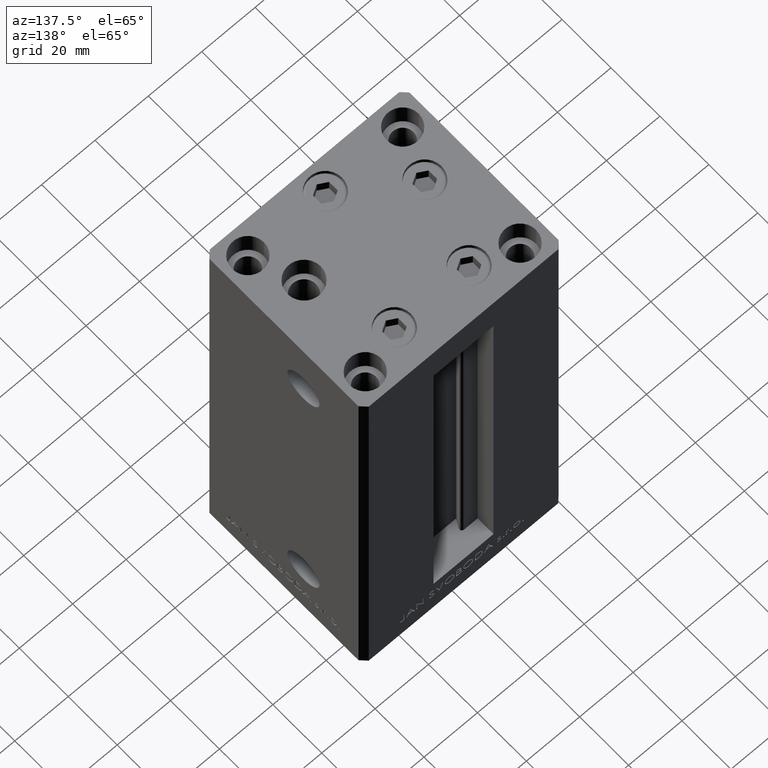
[diagram: clean part render]
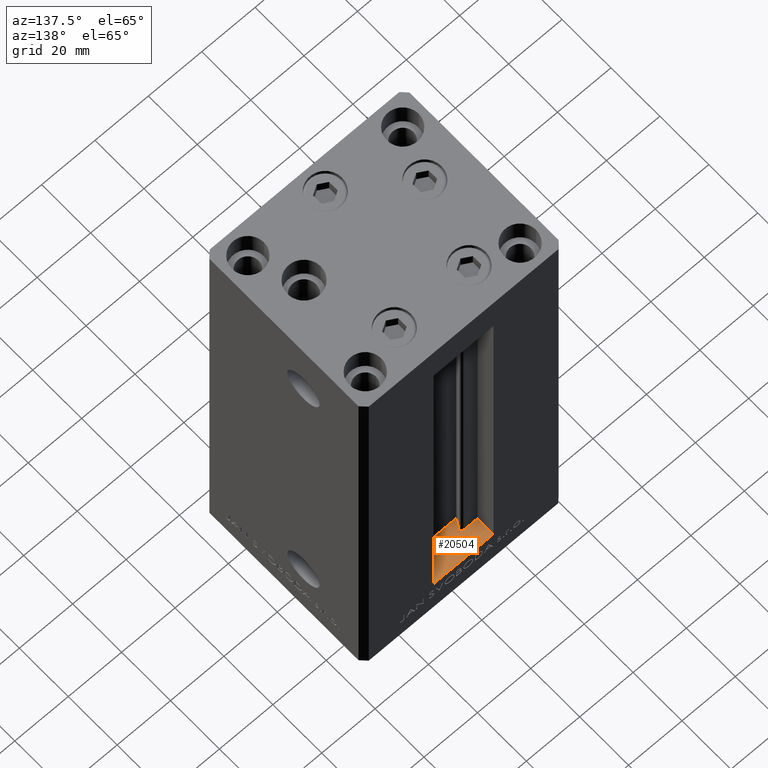
[diagram: same view with one face highlighted and labeled with its STEP entity id]
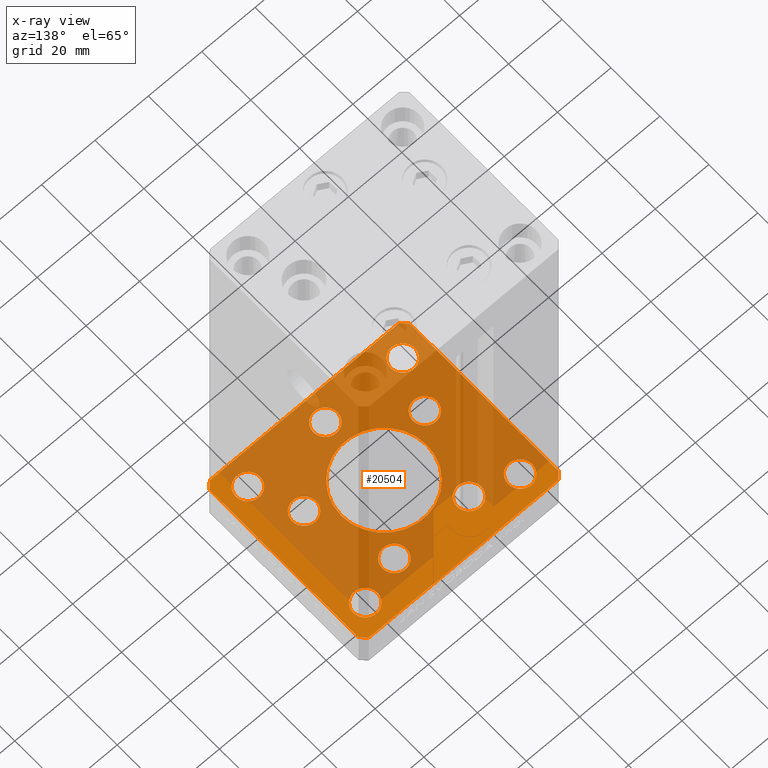
[diagram: x-ray of the same camera — body ghosted, the highlighted face saturated]
A machine part, auxiliary view. The second image highlights one B-rep face of the part: STEP entity #20504.
The next image is the same camera in x-ray: the body ghosted, the highlighted face saturated — about 75% of this face is hidden behind the body in this view.
In plain terms, the highlighted planar face has unit normal (0, 0, -1).
Its self-contained STEP definition (entity closure, byte-faithful):
#67 = ORIENTED_EDGE ( 'NONE', *, *, #5984, .T. ) ;
#135 = CARTESIAN_POINT ( 'NONE',  ( -35.50000000000001421, -32.50000000000000711, -15.00000000000000000 ) ) ;
#517 = EDGE_CURVE ( 'NONE', #12362, #7065, #46387, .T. ) ;
#631 = LINE ( 'NONE', #23082, #25817 ) ;
#787 = VERTEX_POINT ( 'NONE', #13084 ) ;
#990 = AXIS2_PLACEMENT_3D ( 'NONE', #37481, #13792, #44215 ) ;
#1208 = ORIENTED_EDGE ( 'NONE', *, *, #36132, .F. ) ;
#1336 = ORIENTED_EDGE ( 'NONE', *, *, #19870, .T. ) ;
#1535 = CARTESIAN_POINT ( 'NONE',  ( 24.50000000000000000, 24.00000000000000355, -15.00000000000000000 ) ) ;
#1540 = CIRCLE ( 'NONE', #46072, 4.500000000000000888 ) ;
#1582 = CIRCLE ( 'NONE', #3978, 4.500000000000005329 ) ;
#2136 = CARTESIAN_POINT ( 'NONE',  ( 29.00000000000000000, 24.00000000000000355, -15.00000000000000000 ) ) ;
#2154 = VERTEX_POINT ( 'NONE', #2218 ) ;
#2218 = CARTESIAN_POINT ( 'NONE',  ( -9.491068579633243019, 19.50000000000000000, -15.00000000000000000 ) ) ;
#2884 = CARTESIAN_POINT ( 'NONE',  ( -33.50000000000000000, -23.99999999999999645, -15.00000000000000000 ) ) ;
#3381 = CIRCLE ( 'NONE', #990, 4.500000000000005329 ) ;
#3389 = FACE_BOUND ( 'NONE', #20641, .T. ) ;
#3442 = EDGE_CURVE ( 'NONE', #36991, #12271, #7432, .T. ) ;
#3766 = CARTESIAN_POINT ( 'NONE',  ( 37.50000000000000711, 30.50000000000001421, -15.00000000000000000 ) ) ;
#3770 = DIRECTION ( 'NONE',  ( 0.000000000000000000, -0.000000000000000000, -1.000000000000000000 ) ) ;
#3821 = DIRECTION ( 'NONE',  ( -0.000000000000000000, 0.000000000000000000, 1.000000000000000000 ) ) ;
#3951 = CIRCLE ( 'NONE', #12701, 4.500000000000000888 ) ;
#3978 = AXIS2_PLACEMENT_3D ( 'NONE', #47715, #5120, #32311 ) ;
#4484 = CARTESIAN_POINT ( 'NONE',  ( -37.50000000000000000, -30.50000000000004263, -15.00000000000000000 ) ) ;
#5045 = AXIS2_PLACEMENT_3D ( 'NONE', #29047, #3821, #34506 ) ;
#5120 = DIRECTION ( 'NONE',  ( -0.000000000000000000, 0.000000000000000000, 1.000000000000000000 ) ) ;
#5166 = CARTESIAN_POINT ( 'NONE',  ( -13.99106857963324124, 19.50000000000000000, -15.00000000000000000 ) ) ;
#5429 = ORIENTED_EDGE ( 'NONE', *, *, #8409, .F. ) ;
#5946 = ORIENTED_EDGE ( 'NONE', *, *, #15136, .F. ) ;
#5959 = EDGE_CURVE ( 'NONE', #7065, #12362, #43356, .T. ) ;
#5984 = EDGE_CURVE ( 'NONE', #7538, #20833, #18720, .T. ) ;
#6323 = EDGE_CURVE ( 'NONE', #14102, #20842, #16839, .T. ) ;
#6462 = CARTESIAN_POINT ( 'NONE',  ( 29.00000000000000355, -23.99999999999999645, -15.00000000000000000 ) ) ;
#6846 = AXIS2_PLACEMENT_3D ( 'NONE', #14026, #17772, #44932 ) ;
#6952 = DIRECTION ( 'NONE',  ( -0.000000000000000000, 0.000000000000000000, 1.000000000000000000 ) ) ;
#7033 = CIRCLE ( 'NONE', #9435, 4.499999999999999112 ) ;
#7065 = VERTEX_POINT ( 'NONE', #47745 ) ;
#7106 = LINE ( 'NONE', #41030, #16407 ) ;
#7313 = DIRECTION ( 'NONE',  ( 0.7071067811865512365, -0.7071067811865439090, 0.000000000000000000 ) ) ;
#7432 = CIRCLE ( 'NONE', #5045, 4.500000000000000888 ) ;
#7538 = VERTEX_POINT ( 'NONE', #46094 ) ;
#7596 = VERTEX_POINT ( 'NONE', #31913 ) ;
#7606 = DIRECTION ( 'NONE',  ( 1.000000000000000000, 0.000000000000000000, 0.000000000000000000 ) ) ;
#7775 = DIRECTION ( 'NONE',  ( 1.000000000000000000, 0.000000000000000000, 0.000000000000000000 ) ) ;
#7933 = CIRCLE ( 'NONE', #28636, 16.00000000000000000 ) ;
#8409 = EDGE_CURVE ( 'NONE', #31732, #13310, #7106, .T. ) ;
#8895 = VECTOR ( 'NONE', #10168, 1000.000000000000000 ) ;
#8911 = EDGE_LOOP ( 'NONE', ( #24884, #1336 ) ) ;
#9035 = EDGE_CURVE ( 'NONE', #30160, #2154, #49023, .T. ) ;
#9121 = DIRECTION ( 'NONE',  ( 1.000000000000000000, 0.000000000000000000, 0.000000000000000000 ) ) ;
#9355 = CARTESIAN_POINT ( 'NONE',  ( 37.50000000000000711, -30.49999999999992895, -15.00000000000000000 ) ) ;
#9424 = LINE ( 'NONE', #24654, #8895 ) ;
#9435 = AXIS2_PLACEMENT_3D ( 'NONE', #47065, #43345, #12677 ) ;
#9644 = CIRCLE ( 'NONE', #41461, 4.500000000000001776 ) ;
#9646 = LINE ( 'NONE', #25116, #48553 ) ;
#10039 = AXIS2_PLACEMENT_3D ( 'NONE', #5166, #32109, #13141 ) ;
#10159 = ORIENTED_EDGE ( 'NONE', *, *, #29516, .F. ) ;
#10168 = DIRECTION ( 'NONE',  ( -1.000000000000000000, -1.954618001100627573E-16, 0.000000000000000000 ) ) ;
#10870 = FACE_BOUND ( 'NONE', #41276, .T. ) ;
#11111 = FACE_BOUND ( 'NONE', #18669, .T. ) ;
#11173 = DIRECTION ( 'NONE',  ( 1.000000000000000000, 0.000000000000000000, 0.000000000000000000 ) ) ;
#11854 = VECTOR ( 'NONE', #7313, 1000.000000000000000 ) ;
#11894 = AXIS2_PLACEMENT_3D ( 'NONE', #14987, #18002, #33720 ) ;
#12271 = VERTEX_POINT ( 'NONE', #12318 ) ;
#12318 = CARTESIAN_POINT ( 'NONE',  ( 18.12741699796953299, -8.000000000000000000, -15.00000000000000000 ) ) ;
#12362 = VERTEX_POINT ( 'NONE', #38513 ) ;
#12677 = DIRECTION ( 'NONE',  ( 1.000000000000000000, 0.000000000000000000, 0.000000000000000000 ) ) ;
#12701 = AXIS2_PLACEMENT_3D ( 'NONE', #24348, #32072, #43034 ) ;
#13084 = CARTESIAN_POINT ( 'NONE',  ( 9.491068579633235913, 19.50000000000000000, -15.00000000000000000 ) ) ;
#13131 = AXIS2_PLACEMENT_3D ( 'NONE', #48146, #29975, #22004 ) ;
#13141 = DIRECTION ( 'NONE',  ( 1.000000000000000000, 0.000000000000000000, 0.000000000000000000 ) ) ;
#13310 = VERTEX_POINT ( 'NONE', #4484 ) ;
#13792 = DIRECTION ( 'NONE',  ( -0.000000000000000000, 0.000000000000000000, 1.000000000000000000 ) ) ;
#13827 = ORIENTED_EDGE ( 'NONE', *, *, #45157, .T. ) ;
#13888 = EDGE_CURVE ( 'NONE', #13310, #48757, #14297, .T. ) ;
#14026 = CARTESIAN_POINT ( 'NONE',  ( -29.00000000000000000, -23.99999999999999645, -15.00000000000000000 ) ) ;
#14102 = VERTEX_POINT ( 'NONE', #41175 ) ;
#14297 = LINE ( 'NONE', #21808, #11854 ) ;
#14591 = FACE_BOUND ( 'NONE', #8911, .T. ) ;
#14836 = FACE_BOUND ( 'NONE', #35690, .T. ) ;
#14936 = VERTEX_POINT ( 'NONE', #33714 ) ;
#14987 = CARTESIAN_POINT ( 'NONE',  ( 29.00000000000000355, -23.99999999999999645, -15.00000000000000000 ) ) ;
#15065 = ORIENTED_EDGE ( 'NONE', *, *, #17263, .F. ) ;
#15076 = PLANE ( 'NONE',  #36734 ) ;
#15078 = CIRCLE ( 'NONE', #11894, 4.499999999999997335 ) ;
#15136 = EDGE_CURVE ( 'NONE', #22464, #16846, #1540, .T. ) ;
#15360 = EDGE_CURVE ( 'NONE', #33349, #18550, #20663, .T. ) ;
#15456 = CARTESIAN_POINT ( 'NONE',  ( -29.00000000000000000, 24.00000000000000711, -15.00000000000000000 ) ) ;
#15691 = DIRECTION ( 'NONE',  ( -0.000000000000000000, 0.000000000000000000, 1.000000000000000000 ) ) ;
#16262 = EDGE_CURVE ( 'NONE', #20172, #32651, #7933, .T. ) ;
#16407 = VECTOR ( 'NONE', #26837, 1000.000000000000000 ) ;
#16839 = LINE ( 'NONE', #9355, #45760 ) ;
#16846 = VERTEX_POINT ( 'NONE', #23445 ) ;
#17211 = VERTEX_POINT ( 'NONE', #27639 ) ;
#17263 = EDGE_CURVE ( 'NONE', #35081, #14102, #9646, .T. ) ;
#17592 = CARTESIAN_POINT ( 'NONE',  ( -35.50000000000000711, 32.49999999999997868, -15.00000000000000000 ) ) ;
#17632 = ORIENTED_EDGE ( 'NONE', *, *, #39773, .T. ) ;
#17772 = DIRECTION ( 'NONE',  ( 0.000000000000000000, -0.000000000000000000, -1.000000000000000000 ) ) ;
#18002 = DIRECTION ( 'NONE',  ( -0.000000000000000000, 0.000000000000000000, 1.000000000000000000 ) ) ;
#18190 = ORIENTED_EDGE ( 'NONE', *, *, #31146, .F. ) ;
#18550 = VERTEX_POINT ( 'NONE', #46208 ) ;
#18669 = EDGE_LOOP ( 'NONE', ( #45734, #40295 ) ) ;
#18720 = CIRCLE ( 'NONE', #40996, 4.499999999999997335 ) ;
#18856 = EDGE_CURVE ( 'NONE', #32651, #20172, #45400, .T. ) ;
#19181 = EDGE_CURVE ( 'NONE', #7596, #31732, #43779, .T. ) ;
#19325 = ORIENTED_EDGE ( 'NONE', *, *, #21867, .F. ) ;
#19331 = FACE_BOUND ( 'NONE', #26724, .T. ) ;
#19340 = DIRECTION ( 'NONE',  ( 1.000000000000000000, 1.172770800660376149E-15, 0.000000000000000000 ) ) ;
#19870 = EDGE_CURVE ( 'NONE', #14936, #27891, #9644, .T. ) ;
#20043 = ORIENTED_EDGE ( 'NONE', *, *, #3442, .T. ) ;
#20172 = VERTEX_POINT ( 'NONE', #42803 ) ;
#20401 = CIRCLE ( 'NONE', #6846, 4.500000000000000888 ) ;
#20504 = ADVANCED_FACE ( 'NONE', ( #26589, #29823, #14591, #19331, #10870, #34300, #49228, #3389, #37542, #14836, #11111 ), #15076, .F. ) ;
#20641 = EDGE_LOOP ( 'NONE', ( #1208, #10159 ) ) ;
#20663 = CIRCLE ( 'NONE', #33399, 4.499999999999997335 ) ;
#20693 = EDGE_LOOP ( 'NONE', ( #17632, #27883 ) ) ;
#20833 = VERTEX_POINT ( 'NONE', #30752 ) ;
#20842 = VERTEX_POINT ( 'NONE', #49167 ) ;
#21144 = AXIS2_PLACEMENT_3D ( 'NONE', #34381, #34136, #40428 ) ;
#21172 = VECTOR ( 'NONE', #30464, 1000.000000000000000 ) ;
#21715 = ORIENTED_EDGE ( 'NONE', *, *, #13888, .F. ) ;
#21808 = CARTESIAN_POINT ( 'NONE',  ( -37.50000000000000000, -30.50000000000004263, -15.00000000000000000 ) ) ;
#21867 = EDGE_CURVE ( 'NONE', #24857, #7596, #9424, .T. ) ;
#22004 = DIRECTION ( 'NONE',  ( 1.000000000000000000, 0.000000000000000000, 0.000000000000000000 ) ) ;
#22464 = VERTEX_POINT ( 'NONE', #1535 ) ;
#23082 = CARTESIAN_POINT ( 'NONE',  ( -35.50000000000001421, -32.50000000000000711, -15.00000000000000000 ) ) ;
#23445 = CARTESIAN_POINT ( 'NONE',  ( 33.50000000000000000, 24.00000000000000355, -15.00000000000000000 ) ) ;
#23556 = AXIS2_PLACEMENT_3D ( 'NONE', #2136, #36061, #9121 ) ;
#24233 = DIRECTION ( 'NONE',  ( 0.000000000000000000, -0.000000000000000000, -1.000000000000000000 ) ) ;
#24348 = CARTESIAN_POINT ( 'NONE',  ( 22.62741699796953299, -8.000000000000000000, -15.00000000000000000 ) ) ;
#24654 = CARTESIAN_POINT ( 'NONE',  ( 35.50000000000000000, 32.49999999999999289, -15.00000000000000000 ) ) ;
#24857 = VERTEX_POINT ( 'NONE', #40729 ) ;
#24884 = ORIENTED_EDGE ( 'NONE', *, *, #35826, .T. ) ;
#25018 = CARTESIAN_POINT ( 'NONE',  ( 35.50000000000001421, -32.49999999999992184, -15.00000000000000000 ) ) ;
#25074 = DIRECTION ( 'NONE',  ( 0.000000000000000000, 1.000000000000000000, 0.000000000000000000 ) ) ;
#25116 = CARTESIAN_POINT ( 'NONE',  ( 35.50000000000001421, -32.49999999999992184, -15.00000000000000000 ) ) ;
#25441 = DIRECTION ( 'NONE',  ( 1.000000000000000000, 0.000000000000000000, 0.000000000000000000 ) ) ;
#25455 = ORIENTED_EDGE ( 'NONE', *, *, #16262, .F. ) ;
#25817 = VECTOR ( 'NONE', #19340, 1000.000000000000000 ) ;
#26106 = DIRECTION ( 'NONE',  ( 0.7071067811865463515, 0.7071067811865487940, 0.000000000000000000 ) ) ;
#26589 = FACE_BOUND ( 'NONE', #46948, .T. ) ;
#26724 = EDGE_LOOP ( 'NONE', ( #20043, #13827 ) ) ;
#26837 = DIRECTION ( 'NONE',  ( 2.275047181608926165E-16, -1.000000000000000000, 0.000000000000000000 ) ) ;
#27062 = CARTESIAN_POINT ( 'NONE',  ( 0.000000000000000000, -24.00000000000001066, -15.00000000000000000 ) ) ;
#27395 = EDGE_CURVE ( 'NONE', #787, #17211, #3381, .T. ) ;
#27432 = DIRECTION ( 'NONE',  ( 0.000000000000000000, -0.000000000000000000, -1.000000000000000000 ) ) ;
#27448 = DIRECTION ( 'NONE',  ( 1.000000000000000000, 0.000000000000000000, 0.000000000000000000 ) ) ;
#27497 = CARTESIAN_POINT ( 'NONE',  ( 27.12741699796953654, -8.000000000000000000, -15.00000000000000000 ) ) ;
#27598 = AXIS2_PLACEMENT_3D ( 'NONE', #27062, #42729, #45485 ) ;
#27639 = CARTESIAN_POINT ( 'NONE',  ( 18.49106857963324657, 19.50000000000000000, -15.00000000000000000 ) ) ;
#27700 = ORIENTED_EDGE ( 'NONE', *, *, #18856, .F. ) ;
#27883 = ORIENTED_EDGE ( 'NONE', *, *, #9035, .T. ) ;
#27891 = VERTEX_POINT ( 'NONE', #30442 ) ;
#28167 = AXIS2_PLACEMENT_3D ( 'NONE', #35703, #24233, #47138 ) ;
#28636 = AXIS2_PLACEMENT_3D ( 'NONE', #30130, #41835, #11173 ) ;
#29003 = ORIENTED_EDGE ( 'NONE', *, *, #27395, .T. ) ;
#29047 = CARTESIAN_POINT ( 'NONE',  ( 22.62741699796953299, -8.000000000000000000, -15.00000000000000000 ) ) ;
#29245 = CARTESIAN_POINT ( 'NONE',  ( -22.62741699796953299, -8.000000000000000000, -15.00000000000000000 ) ) ;
#29416 = ORIENTED_EDGE ( 'NONE', *, *, #517, .T. ) ;
#29516 = EDGE_CURVE ( 'NONE', #33743, #44369, #37688, .T. ) ;
#29823 = FACE_BOUND ( 'NONE', #47192, .T. ) ;
#29975 = DIRECTION ( 'NONE',  ( -0.000000000000000000, 0.000000000000000000, 1.000000000000000000 ) ) ;
#30130 = CARTESIAN_POINT ( 'NONE',  ( 0.000000000000000000, 0.000000000000000000, -15.00000000000000000 ) ) ;
#30160 = VERTEX_POINT ( 'NONE', #32034 ) ;
#30243 = DIRECTION ( 'NONE',  ( -0.000000000000000000, 0.000000000000000000, 1.000000000000000000 ) ) ;
#30442 = CARTESIAN_POINT ( 'NONE',  ( 4.500000000000001776, -24.00000000000001066, -15.00000000000000000 ) ) ;
#30464 = DIRECTION ( 'NONE',  ( -0.7071067811865524577, 0.7071067811865426878, 0.000000000000000000 ) ) ;
#30752 = CARTESIAN_POINT ( 'NONE',  ( -18.12741699796953654, -8.000000000000000000, -15.00000000000000000 ) ) ;
#31146 = EDGE_CURVE ( 'NONE', #48757, #35081, #631, .T. ) ;
#31157 = CARTESIAN_POINT ( 'NONE',  ( 33.50000000000000000, -23.99999999999999645, -15.00000000000000000 ) ) ;
#31732 = VERTEX_POINT ( 'NONE', #32845 ) ;
#31913 = CARTESIAN_POINT ( 'NONE',  ( -35.50000000000000711, 32.49999999999997868, -15.00000000000000000 ) ) ;
#32034 = CARTESIAN_POINT ( 'NONE',  ( -18.49106857963323947, 19.50000000000000000, -15.00000000000000000 ) ) ;
#32072 = DIRECTION ( 'NONE',  ( -0.000000000000000000, 0.000000000000000000, 1.000000000000000000 ) ) ;
#32109 = DIRECTION ( 'NONE',  ( -0.000000000000000000, 0.000000000000000000, 1.000000000000000000 ) ) ;
#32311 = DIRECTION ( 'NONE',  ( 1.000000000000000000, 0.000000000000000000, 0.000000000000000000 ) ) ;
#32651 = VERTEX_POINT ( 'NONE', #42782 ) ;
#32796 = CARTESIAN_POINT ( 'NONE',  ( -24.50000000000000000, -23.99999999999999645, -15.00000000000000000 ) ) ;
#32845 = CARTESIAN_POINT ( 'NONE',  ( -37.50000000000001421, 30.50000000000000000, -15.00000000000000000 ) ) ;
#32857 = EDGE_LOOP ( 'NONE', ( #35754, #5946 ) ) ;
#33349 = VERTEX_POINT ( 'NONE', #31157 ) ;
#33399 = AXIS2_PLACEMENT_3D ( 'NONE', #6462, #6952, #25441 ) ;
#33714 = CARTESIAN_POINT ( 'NONE',  ( -4.500000000000001776, -24.00000000000001066, -15.00000000000000000 ) ) ;
#33720 = DIRECTION ( 'NONE',  ( 1.000000000000000000, 0.000000000000000000, 0.000000000000000000 ) ) ;
#33743 = VERTEX_POINT ( 'NONE', #2884 ) ;
#34136 = DIRECTION ( 'NONE',  ( -0.000000000000000000, 0.000000000000000000, 1.000000000000000000 ) ) ;
#34279 = ORIENTED_EDGE ( 'NONE', *, *, #37667, .T. ) ;
#34300 = FACE_BOUND ( 'NONE', #20693, .T. ) ;
#34381 = CARTESIAN_POINT ( 'NONE',  ( -22.62741699796953299, -8.000000000000000000, -15.00000000000000000 ) ) ;
#34506 = DIRECTION ( 'NONE',  ( 1.000000000000000000, 0.000000000000000000, 0.000000000000000000 ) ) ;
#34549 = DIRECTION ( 'NONE',  ( -0.000000000000000000, 0.000000000000000000, 1.000000000000000000 ) ) ;
#34742 = EDGE_CURVE ( 'NONE', #16846, #22464, #45045, .T. ) ;
#35081 = VERTEX_POINT ( 'NONE', #25018 ) ;
#35105 = ORIENTED_EDGE ( 'NONE', *, *, #46025, .T. ) ;
#35690 = EDGE_LOOP ( 'NONE', ( #29416, #45560 ) ) ;
#35703 = CARTESIAN_POINT ( 'NONE',  ( -29.00000000000000000, -23.99999999999999645, -15.00000000000000000 ) ) ;
#35754 = ORIENTED_EDGE ( 'NONE', *, *, #34742, .F. ) ;
#35826 = EDGE_CURVE ( 'NONE', #27891, #14936, #40311, .T. ) ;
#36056 = ORIENTED_EDGE ( 'NONE', *, *, #38664, .F. ) ;
#36061 = DIRECTION ( 'NONE',  ( 0.000000000000000000, -0.000000000000000000, -1.000000000000000000 ) ) ;
#36132 = EDGE_CURVE ( 'NONE', #44369, #33743, #20401, .T. ) ;
#36264 = CIRCLE ( 'NONE', #21144, 4.499999999999997335 ) ;
#36401 = ORIENTED_EDGE ( 'NONE', *, *, #6323, .F. ) ;
#36734 = AXIS2_PLACEMENT_3D ( 'NONE', #41771, #34549, #7606 ) ;
#36991 = VERTEX_POINT ( 'NONE', #27497 ) ;
#37481 = CARTESIAN_POINT ( 'NONE',  ( 13.99106857963324124, 19.50000000000000000, -15.00000000000000000 ) ) ;
#37542 = FACE_OUTER_BOUND ( 'NONE', #41308, .T. ) ;
#37661 = AXIS2_PLACEMENT_3D ( 'NONE', #15456, #15691, #27448 ) ;
#37667 = EDGE_CURVE ( 'NONE', #20833, #7538, #36264, .T. ) ;
#37688 = CIRCLE ( 'NONE', #28167, 4.500000000000000888 ) ;
#37930 = LINE ( 'NONE', #3766, #21172 ) ;
#38177 = DIRECTION ( 'NONE',  ( 1.000000000000000000, 0.000000000000000000, 0.000000000000000000 ) ) ;
#38513 = CARTESIAN_POINT ( 'NONE',  ( -24.50000000000000000, 24.00000000000000711, -15.00000000000000000 ) ) ;
#38664 = EDGE_CURVE ( 'NONE', #20842, #24857, #37930, .T. ) ;
#38864 = CARTESIAN_POINT ( 'NONE',  ( 0.000000000000000000, 0.000000000000000000, -15.00000000000000000 ) ) ;
#39773 = EDGE_CURVE ( 'NONE', #2154, #30160, #7033, .T. ) ;
#39900 = VECTOR ( 'NONE', #40043, 1000.000000000000000 ) ;
#40043 = DIRECTION ( 'NONE',  ( -0.7071067811865524577, -0.7071067811865426878, 0.000000000000000000 ) ) ;
#40295 = ORIENTED_EDGE ( 'NONE', *, *, #44721, .T. ) ;
#40311 = CIRCLE ( 'NONE', #27598, 4.500000000000001776 ) ;
#40428 = DIRECTION ( 'NONE',  ( 1.000000000000000000, 0.000000000000000000, 0.000000000000000000 ) ) ;
#40643 = AXIS2_PLACEMENT_3D ( 'NONE', #38864, #27432, #47078 ) ;
#40687 = DIRECTION ( 'NONE',  ( 1.000000000000000000, 0.000000000000000000, 0.000000000000000000 ) ) ;
#40729 = CARTESIAN_POINT ( 'NONE',  ( 35.50000000000000000, 32.49999999999999289, -15.00000000000000000 ) ) ;
#40996 = AXIS2_PLACEMENT_3D ( 'NONE', #29245, #44426, #40687 ) ;
#41030 = CARTESIAN_POINT ( 'NONE',  ( -37.50000000000001421, 30.50000000000000000, -15.00000000000000000 ) ) ;
#41175 = CARTESIAN_POINT ( 'NONE',  ( 37.50000000000000711, -30.49999999999992895, -15.00000000000000000 ) ) ;
#41276 = EDGE_LOOP ( 'NONE', ( #35105, #29003 ) ) ;
#41308 = EDGE_LOOP ( 'NONE', ( #21715, #5429, #45970, #19325, #36056, #36401, #15065, #18190 ) ) ;
#41461 = AXIS2_PLACEMENT_3D ( 'NONE', #45178, #30243, #7775 ) ;
#41771 = CARTESIAN_POINT ( 'NONE',  ( 0.000000000000000000, 0.000000000000000000, -15.00000000000000000 ) ) ;
#41835 = DIRECTION ( 'NONE',  ( 0.000000000000000000, -0.000000000000000000, -1.000000000000000000 ) ) ;
#42729 = DIRECTION ( 'NONE',  ( -0.000000000000000000, 0.000000000000000000, 1.000000000000000000 ) ) ;
#42782 = CARTESIAN_POINT ( 'NONE',  ( 16.00000000000000000, 0.000000000000000000, -15.00000000000000000 ) ) ;
#42803 = CARTESIAN_POINT ( 'NONE',  ( -16.00000000000000000, 1.959434878635765131E-15, -15.00000000000000000 ) ) ;
#43034 = DIRECTION ( 'NONE',  ( 1.000000000000000000, 0.000000000000000000, 0.000000000000000000 ) ) ;
#43345 = DIRECTION ( 'NONE',  ( -0.000000000000000000, 0.000000000000000000, 1.000000000000000000 ) ) ;
#43356 = CIRCLE ( 'NONE', #13131, 4.500000000000000888 ) ;
#43779 = LINE ( 'NONE', #17592, #39900 ) ;
#44215 = DIRECTION ( 'NONE',  ( 1.000000000000000000, 0.000000000000000000, 0.000000000000000000 ) ) ;
#44369 = VERTEX_POINT ( 'NONE', #32796 ) ;
#44426 = DIRECTION ( 'NONE',  ( -0.000000000000000000, 0.000000000000000000, 1.000000000000000000 ) ) ;
#44721 = EDGE_CURVE ( 'NONE', #18550, #33349, #15078, .T. ) ;
#44932 = DIRECTION ( 'NONE',  ( 1.000000000000000000, 0.000000000000000000, 0.000000000000000000 ) ) ;
#45045 = CIRCLE ( 'NONE', #23556, 4.500000000000000888 ) ;
#45157 = EDGE_CURVE ( 'NONE', #12271, #36991, #3951, .T. ) ;
#45178 = CARTESIAN_POINT ( 'NONE',  ( 0.000000000000000000, -24.00000000000001066, -15.00000000000000000 ) ) ;
#45400 = CIRCLE ( 'NONE', #40643, 16.00000000000000000 ) ;
#45485 = DIRECTION ( 'NONE',  ( 1.000000000000000000, 0.000000000000000000, 0.000000000000000000 ) ) ;
#45560 = ORIENTED_EDGE ( 'NONE', *, *, #5959, .T. ) ;
#45734 = ORIENTED_EDGE ( 'NONE', *, *, #15360, .T. ) ;
#45760 = VECTOR ( 'NONE', #25074, 1000.000000000000000 ) ;
#45970 = ORIENTED_EDGE ( 'NONE', *, *, #19181, .F. ) ;
#46025 = EDGE_CURVE ( 'NONE', #17211, #787, #1582, .T. ) ;
#46072 = AXIS2_PLACEMENT_3D ( 'NONE', #46127, #3770, #38177 ) ;
#46094 = CARTESIAN_POINT ( 'NONE',  ( -27.12741699796953299, -8.000000000000000000, -15.00000000000000000 ) ) ;
#46127 = CARTESIAN_POINT ( 'NONE',  ( 29.00000000000000000, 24.00000000000000355, -15.00000000000000000 ) ) ;
#46208 = CARTESIAN_POINT ( 'NONE',  ( 24.50000000000000711, -23.99999999999999645, -15.00000000000000000 ) ) ;
#46387 = CIRCLE ( 'NONE', #37661, 4.500000000000000888 ) ;
#46948 = EDGE_LOOP ( 'NONE', ( #27700, #25455 ) ) ;
#47065 = CARTESIAN_POINT ( 'NONE',  ( -13.99106857963324124, 19.50000000000000000, -15.00000000000000000 ) ) ;
#47078 = DIRECTION ( 'NONE',  ( 1.000000000000000000, 0.000000000000000000, 0.000000000000000000 ) ) ;
#47138 = DIRECTION ( 'NONE',  ( 1.000000000000000000, 0.000000000000000000, 0.000000000000000000 ) ) ;
#47192 = EDGE_LOOP ( 'NONE', ( #34279, #67 ) ) ;
#47715 = CARTESIAN_POINT ( 'NONE',  ( 13.99106857963324124, 19.50000000000000000, -15.00000000000000000 ) ) ;
#47745 = CARTESIAN_POINT ( 'NONE',  ( -33.50000000000000000, 24.00000000000000711, -15.00000000000000000 ) ) ;
#48146 = CARTESIAN_POINT ( 'NONE',  ( -29.00000000000000000, 24.00000000000000711, -15.00000000000000000 ) ) ;
#48553 = VECTOR ( 'NONE', #26106, 1000.000000000000000 ) ;
#48757 = VERTEX_POINT ( 'NONE', #135 ) ;
#49023 = CIRCLE ( 'NONE', #10039, 4.499999999999999112 ) ;
#49167 = CARTESIAN_POINT ( 'NONE',  ( 37.50000000000000711, 30.50000000000001421, -15.00000000000000000 ) ) ;
#49228 = FACE_BOUND ( 'NONE', #32857, .T. ) ;